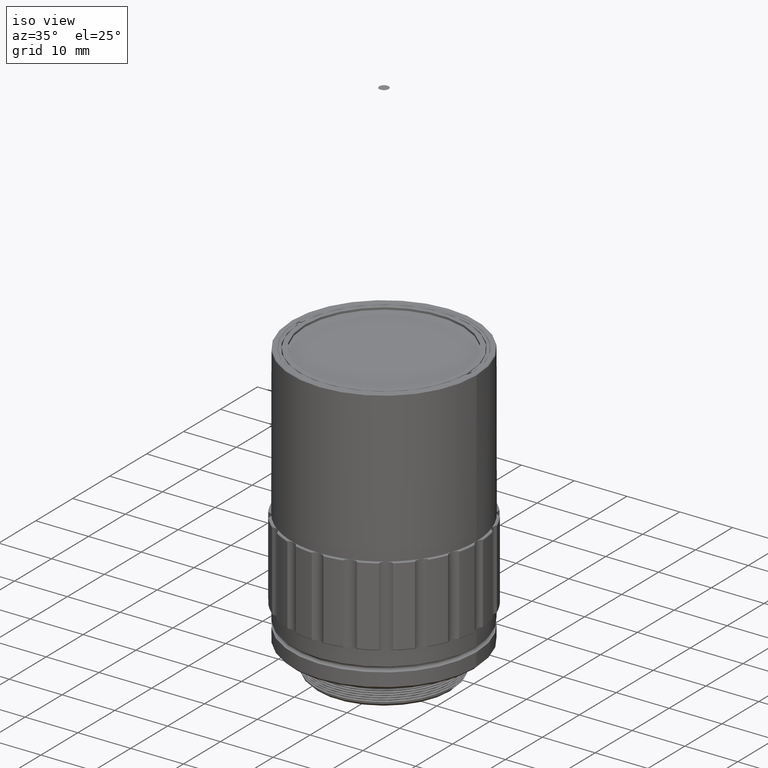
[diagram: clean part render]
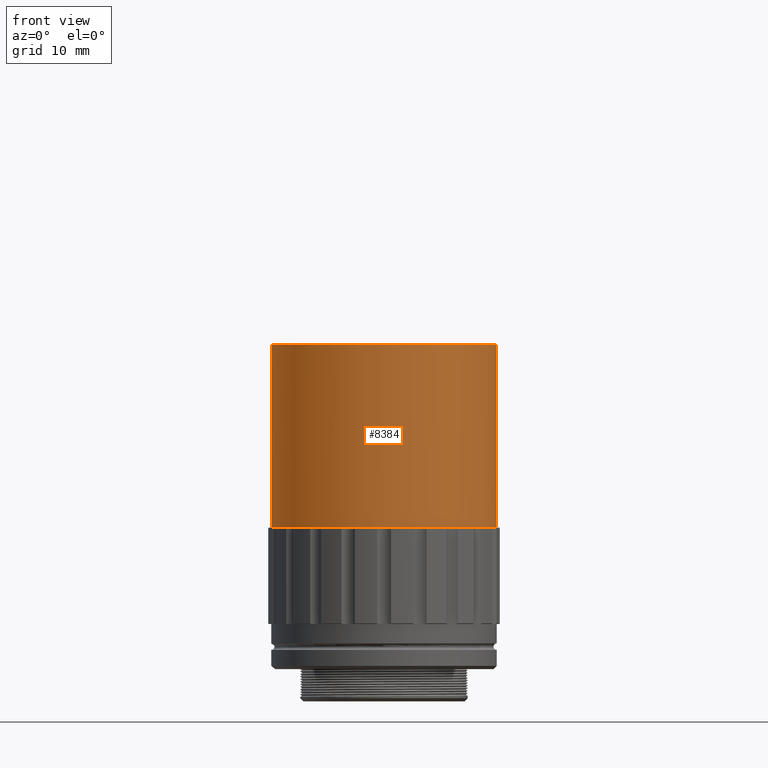
[diagram: tour spotlight — one face highlighted and labeled with its STEP entity id]
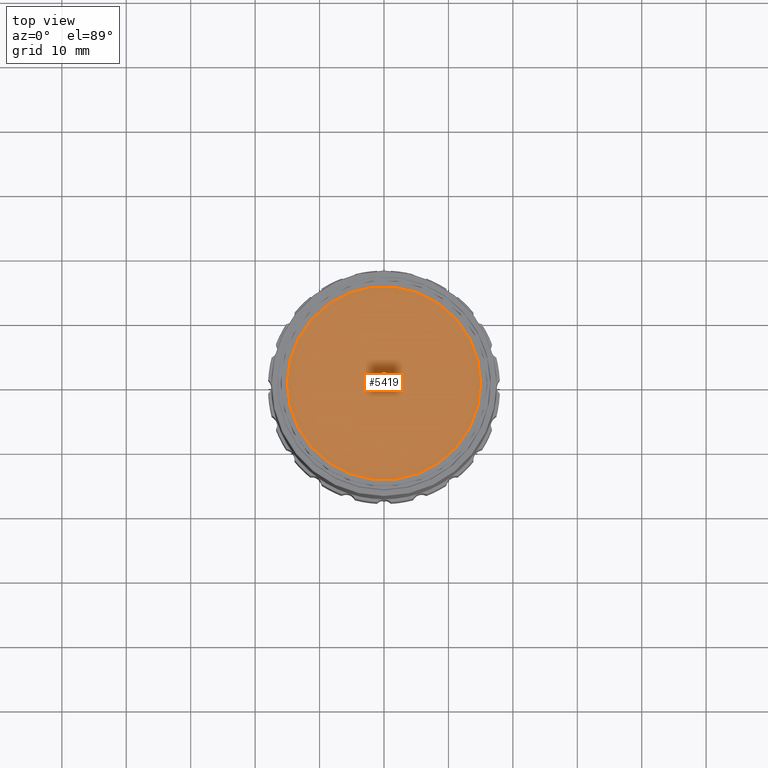
[diagram: tour spotlight — one face highlighted and labeled with its STEP entity id]
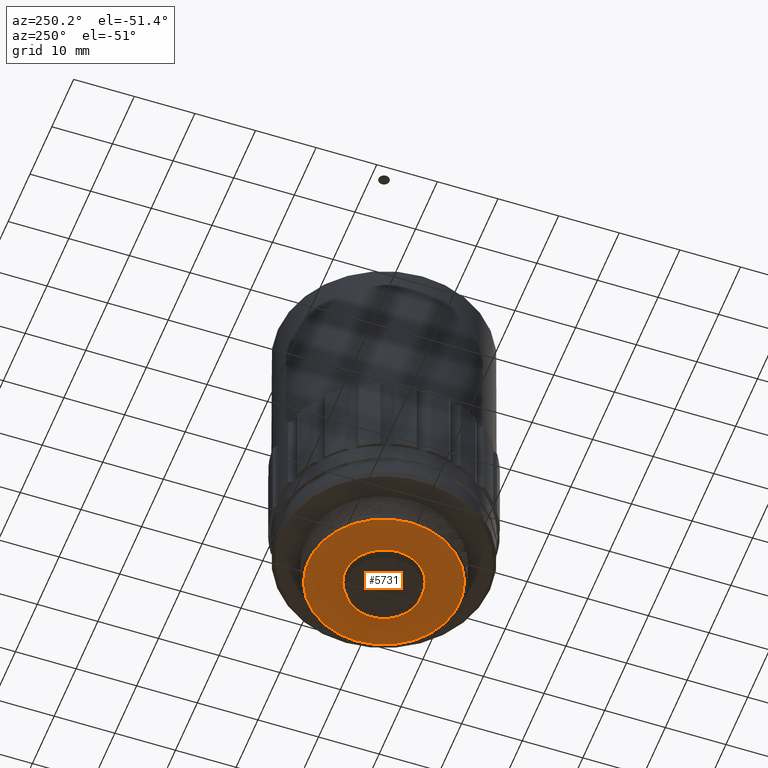
[diagram: tour spotlight — one face highlighted and labeled with its STEP entity id]
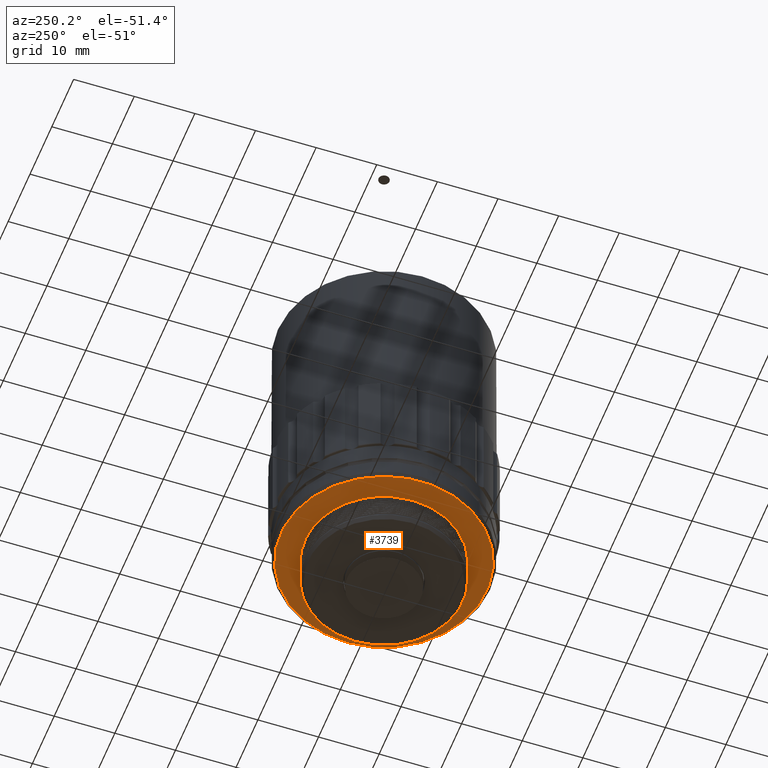
[diagram: tour spotlight — one face highlighted and labeled with its STEP entity id]
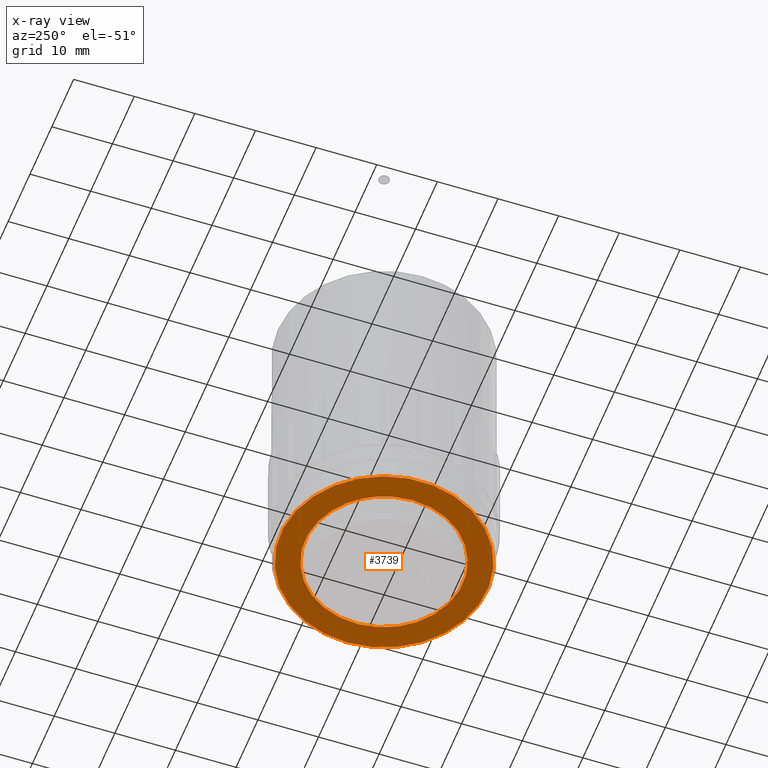
[diagram: x-ray of the same camera — body ghosted, this tour face saturated]
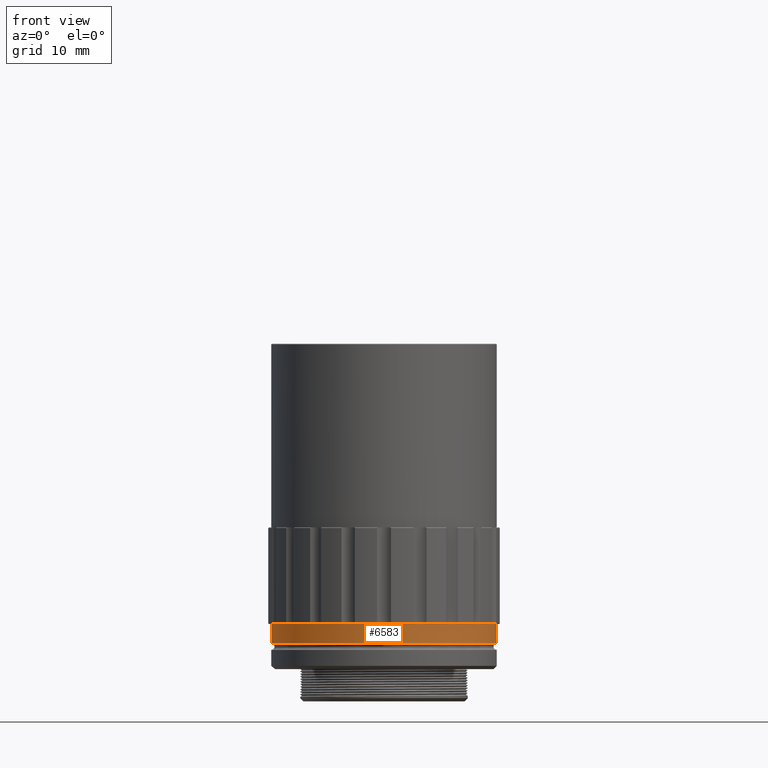
[diagram: tour spotlight — one face highlighted and labeled with its STEP entity id]
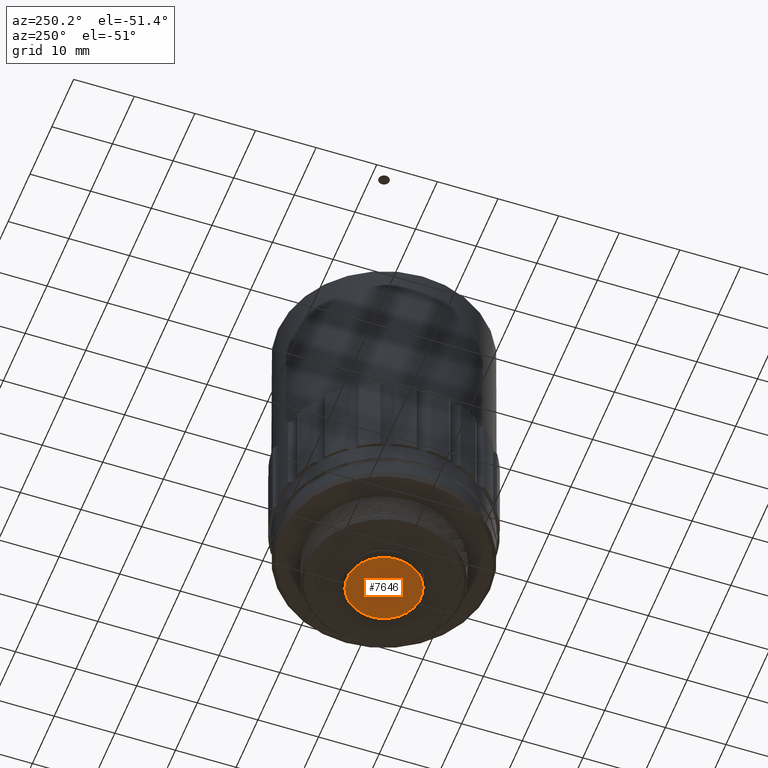
[diagram: tour spotlight — one face highlighted and labeled with its STEP entity id]
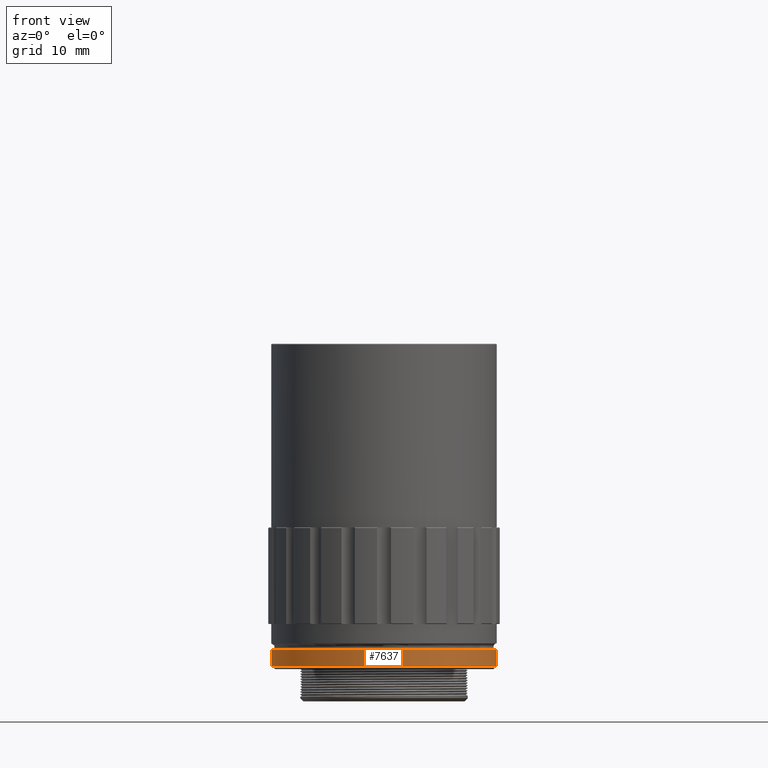
[diagram: tour spotlight — one face highlighted and labeled with its STEP entity id]
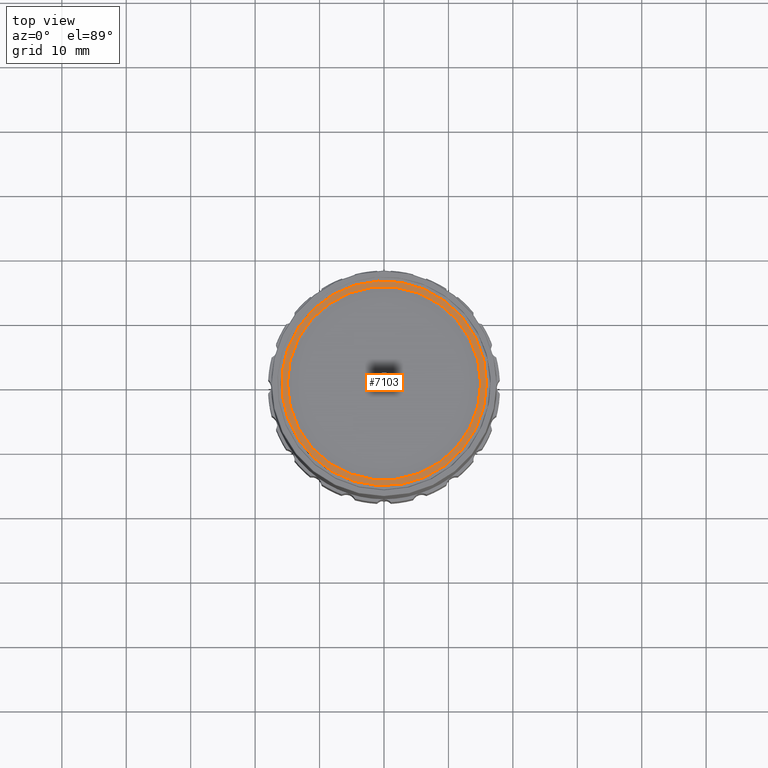
[diagram: tour spotlight — one face highlighted and labeled with its STEP entity id]
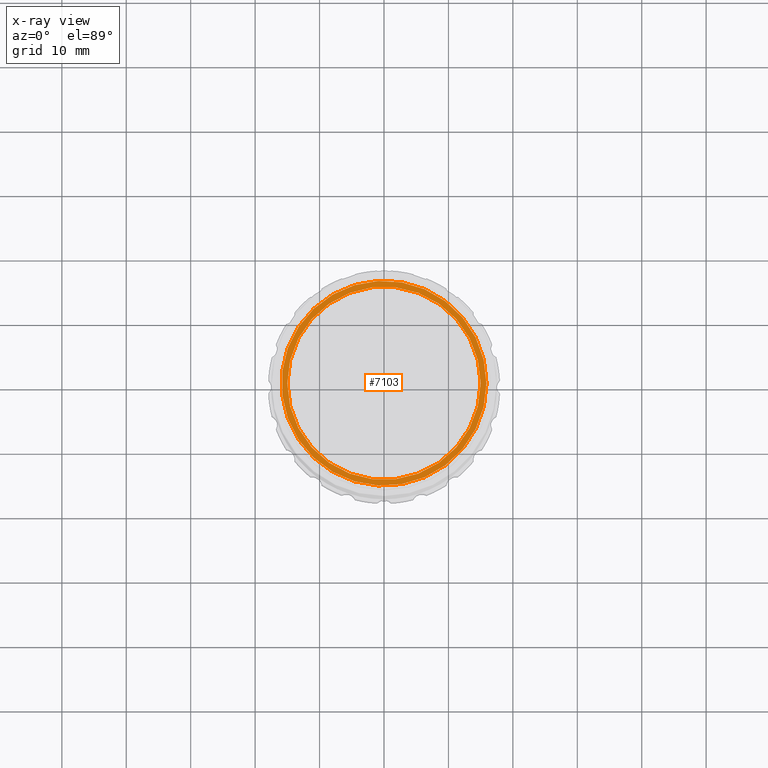
[diagram: x-ray of the same camera — body ghosted, this tour face saturated]
A machine part: a face-by-face anatomy tour. The part has 271 B-rep faces; the first image is the clean iso view, then the 8 largest visible faces are spotlighted one at a time (largest first), each with its STEP entity span.

Face 1 — front view, entity #8384. In plain terms, the highlighted cylindrical surface (bore or boss wall) has radius 17.5 mm, axis along (0, 0, 1).
Definition (entity closure, byte-faithful):
#39 = ORIENTED_EDGE ( 'NONE', *, *, #1118, .T. ) ;
#58 = AXIS2_PLACEMENT_3D ( 'NONE', #542, #6389, #7099 ) ;
#158 = CIRCLE ( 'NONE', #3777, 17.50000000000000000 ) ;
#175 = AXIS2_PLACEMENT_3D ( 'NONE', #1757, #3930, #1101 ) ;
#191 = CARTESIAN_POINT ( 'NONE',  ( -10.28624191511939223, 14.15779740155993771, 26.50000000000008882 ) ) ;
#201 = VERTEX_POINT ( 'NONE', #352 ) ;
#289 = CIRCLE ( 'NONE', #2087, 17.50000000000000000 ) ;
#299 = ORIENTED_EDGE ( 'NONE', *, *, #2020, .T. ) ;
#352 = CARTESIAN_POINT ( 'NONE',  ( 14.15779740155669764, 10.28624191512385266, 26.49999999999997158 ) ) ;
#372 = CARTESIAN_POINT ( 'NONE',  ( 0.000000000000000000, 0.000000000000000000, 26.50000000000000000 ) ) ;
#542 = CARTESIAN_POINT ( 'NONE',  ( 0.000000000000000000, 0.000000000000000000, 26.50000000000000000 ) ) ;
#582 = DIRECTION ( 'NONE',  ( 0.000000000000000000, 0.000000000000000000, 1.000000000000000000 ) ) ;
#650 = CARTESIAN_POINT ( 'NONE',  ( 17.50000000000000000, 0.000000000000000000, 54.89999999999999858 ) ) ;
#660 = CARTESIAN_POINT ( 'NONE',  ( 0.000000000000000000, 0.000000000000000000, 26.50000000000000000 ) ) ;
#689 = ORIENTED_EDGE ( 'NONE', *, *, #8478, .T. ) ;
#792 = CIRCLE ( 'NONE', #5660, 17.50000000000000000 ) ;
#1031 = EDGE_CURVE ( 'NONE', #1261, #1809, #289, .T. ) ;
#1077 = CARTESIAN_POINT ( 'NONE',  ( -17.49999999999999645, 4.754785213361712775E-15, 26.50000000000082778 ) ) ;
#1101 = DIRECTION ( 'NONE',  ( 1.000000000000000000, 0.000000000000000000, 0.000000000000000000 ) ) ;
#1112 = CIRCLE ( 'NONE', #7127, 17.50000000000000000 ) ;
#1118 = EDGE_CURVE ( 'NONE', #7263, #5479, #6272, .T. ) ;
#1203 = AXIS2_PLACEMENT_3D ( 'NONE', #660, #1269, #8010 ) ;
#1218 = CARTESIAN_POINT ( 'NONE',  ( 0.000000000000000000, 0.000000000000000000, 54.89999999999999858 ) ) ;
#1261 = VERTEX_POINT ( 'NONE', #5251 ) ;
#1269 = DIRECTION ( 'NONE',  ( 0.000000000000000000, 0.000000000000000000, 1.000000000000000000 ) ) ;
#1352 = DIRECTION ( 'NONE',  ( 1.000000000000000000, 0.000000000000000000, 0.000000000000000000 ) ) ;
#1380 = CARTESIAN_POINT ( 'NONE',  ( 0.000000000000000000, 0.000000000000000000, 26.50000000000000000 ) ) ;
#1402 = VERTEX_POINT ( 'NONE', #5463 ) ;
#1423 = DIRECTION ( 'NONE',  ( 1.000000000000000000, 0.000000000000000000, 0.000000000000000000 ) ) ;
#1493 = CARTESIAN_POINT ( 'NONE',  ( 17.50000000000000000, -2.143131898507868248E-15, 26.49999999999988631 ) ) ;
#1503 = EDGE_CURVE ( 'NONE', #5479, #3507, #3756, .T. ) ;
#1571 = ORIENTED_EDGE ( 'NONE', *, *, #4917, .T. ) ;
#1642 = DIRECTION ( 'NONE',  ( 0.000000000000000000, 0.000000000000000000, 1.000000000000000000 ) ) ;
#1757 = CARTESIAN_POINT ( 'NONE',  ( 0.000000000000000000, 0.000000000000000000, 26.50000000000000000 ) ) ;
#1809 = VERTEX_POINT ( 'NONE', #4126 ) ;
#1861 = DIRECTION ( 'NONE',  ( 1.000000000000000000, 0.000000000000000000, 0.000000000000000000 ) ) ;
#1924 = CARTESIAN_POINT ( 'NONE',  ( 0.000000000000000000, 0.000000000000000000, 26.50000000000000000 ) ) ;
#2020 = EDGE_CURVE ( 'NONE', #7874, #2261, #5341, .T. ) ;
#2026 = VERTEX_POINT ( 'NONE', #3812 ) ;
#2074 = AXIS2_PLACEMENT_3D ( 'NONE', #4441, #2349, #7834 ) ;
#2087 = AXIS2_PLACEMENT_3D ( 'NONE', #3859, #3159, #3726 ) ;
#2110 = CARTESIAN_POINT ( 'NONE',  ( 0.000000000000000000, 0.000000000000000000, 26.50000000000000000 ) ) ;
#2210 = AXIS2_PLACEMENT_3D ( 'NONE', #5185, #3050, #5834 ) ;
#2261 = VERTEX_POINT ( 'NONE', #191 ) ;
#2349 = DIRECTION ( 'NONE',  ( 0.000000000000000000, 0.000000000000000000, 1.000000000000000000 ) ) ;
#2365 = CIRCLE ( 'NONE', #3902, 17.50000000000000000 ) ;
#2371 = DIRECTION ( 'NONE',  ( 0.000000000000000000, 0.000000000000000000, 1.000000000000000000 ) ) ;
#2407 = FACE_OUTER_BOUND ( 'NONE', #3805, .T. ) ;
#2488 = EDGE_CURVE ( 'NONE', #2261, #6550, #5906, .T. ) ;
#2490 = DIRECTION ( 'NONE',  ( 0.000000000000000000, 0.000000000000000000, 1.000000000000000000 ) ) ;
#2506 = ORIENTED_EDGE ( 'NONE', *, *, #2984, .T. ) ;
#2543 = VERTEX_POINT ( 'NONE', #4373 ) ;
#2566 = EDGE_CURVE ( 'NONE', #5891, #7263, #2571, .T. ) ;
#2571 = CIRCLE ( 'NONE', #58, 17.50000000000000000 ) ;
#2604 = CIRCLE ( 'NONE', #7507, 17.50000000000000000 ) ;
#2617 = DIRECTION ( 'NONE',  ( 0.000000000000000000, 0.000000000000000000, 1.000000000000000000 ) ) ;
#2819 = AXIS2_PLACEMENT_3D ( 'NONE', #4986, #4329, #7675 ) ;
#2862 = CARTESIAN_POINT ( 'NONE',  ( 0.000000000000000000, 0.000000000000000000, 26.50000000000000000 ) ) ;
#2960 = VERTEX_POINT ( 'NONE', #7885 ) ;
#2984 = EDGE_CURVE ( 'NONE', #201, #3963, #7047, .T. ) ;
#2996 = DIRECTION ( 'NONE',  ( 0.000000000000000000, 0.000000000000000000, 1.000000000000000000 ) ) ;
#3050 = DIRECTION ( 'NONE',  ( 0.000000000000000000, 0.000000000000000000, 1.000000000000000000 ) ) ;
#3159 = DIRECTION ( 'NONE',  ( 0.000000000000000000, 0.000000000000000000, 1.000000000000000000 ) ) ;
#3187 = ORIENTED_EDGE ( 'NONE', *, *, #6896, .T. ) ;
#3189 = CIRCLE ( 'NONE', #8094, 17.50000000000000000 ) ;
#3335 = CARTESIAN_POINT ( 'NONE',  ( -5.407797401563949613, 16.64348903516538059, 26.49999999999894129 ) ) ;
#3343 = DIRECTION ( 'NONE',  ( 0.000000000000000000, 0.000000000000000000, 1.000000000000000000 ) ) ;
#3359 = CARTESIAN_POINT ( 'NONE',  ( 0.000000000000000000, 0.000000000000000000, 26.50000000000000000 ) ) ;
#3401 = CARTESIAN_POINT ( 'NONE',  ( 0.000000000000000000, 0.000000000000000000, 26.50000000000000000 ) ) ;
#3437 = CARTESIAN_POINT ( 'NONE',  ( 10.28624191511939223, 14.15779740155993771, 26.49999999999974065 ) ) ;
#3477 = EDGE_LOOP ( 'NONE', ( #3187, #6065, #689, #4070, #5738, #4422, #3619, #1571, #7455, #7196, #39, #8534, #5039, #2506, #6761, #4134, #6498, #299, #8667, #5965 ) ) ;
#3495 = CARTESIAN_POINT ( 'NONE',  ( 6.735557395310443009E-16, 17.50000000000000000, 26.50000000000076028 ) ) ;
#3503 = CIRCLE ( 'NONE', #4630, 17.50000000000000000 ) ;
#3507 = VERTEX_POINT ( 'NONE', #6534 ) ;
#3613 = CIRCLE ( 'NONE', #2074, 17.50000000000000000 ) ;
#3619 = ORIENTED_EDGE ( 'NONE', *, *, #6274, .T. ) ;
#3633 = CYLINDRICAL_SURFACE ( 'NONE', #2819, 17.50000000000000000 ) ;
#3673 = CARTESIAN_POINT ( 'NONE',  ( 5.407797401563949613, 16.64348903516538059, 26.50000000000057554 ) ) ;
#3678 = AXIS2_PLACEMENT_3D ( 'NONE', #6476, #2371, #3848 ) ;
#3721 = EDGE_CURVE ( 'NONE', #1809, #1402, #6234, .T. ) ;
#3726 = DIRECTION ( 'NONE',  ( 1.000000000000000000, 0.000000000000000000, 0.000000000000000000 ) ) ;
#3756 = CIRCLE ( 'NONE', #7826, 17.50000000000000000 ) ;
#3768 = DIRECTION ( 'NONE',  ( 1.000000000000000000, 0.000000000000000000, 0.000000000000000000 ) ) ;
#3777 = AXIS2_PLACEMENT_3D ( 'NONE', #1380, #5392, #1423 ) ;
#3805 = EDGE_LOOP ( 'NONE', ( #4839 ) ) ;
#3812 = CARTESIAN_POINT ( 'NONE',  ( -16.64348903516538059, -5.407797401563944284, 26.49999999999891287 ) ) ;
#3836 = DIRECTION ( 'NONE',  ( 1.000000000000000000, 0.000000000000000000, 0.000000000000000000 ) ) ;
#3848 = DIRECTION ( 'NONE',  ( 1.000000000000000000, 0.000000000000000000, 0.000000000000000000 ) ) ;
#3859 = CARTESIAN_POINT ( 'NONE',  ( 0.000000000000000000, 0.000000000000000000, 26.50000000000000000 ) ) ;
#3902 = AXIS2_PLACEMENT_3D ( 'NONE', #1218, #6370, #7129 ) ;
#3916 = DIRECTION ( 'NONE',  ( 1.000000000000000000, 0.000000000000000000, 0.000000000000000000 ) ) ;
#3919 = EDGE_CURVE ( 'NONE', #4587, #2026, #792, .T. ) ;
#3930 = DIRECTION ( 'NONE',  ( 0.000000000000000000, 0.000000000000000000, 1.000000000000000000 ) ) ;
#3963 = VERTEX_POINT ( 'NONE', #3437 ) ;
#3985 = EDGE_CURVE ( 'NONE', #5547, #7874, #2604, .T. ) ;
#4028 = DIRECTION ( 'NONE',  ( 1.000000000000000000, 0.000000000000000000, 0.000000000000000000 ) ) ;
#4070 = ORIENTED_EDGE ( 'NONE', *, *, #7482, .T. ) ;
#4126 = CARTESIAN_POINT ( 'NONE',  ( -5.407797401560632267, -16.64348903516654232, 26.49999999999969802 ) ) ;
#4134 = ORIENTED_EDGE ( 'NONE', *, *, #8644, .T. ) ;
#4329 = DIRECTION ( 'NONE',  ( 0.000000000000000000, 0.000000000000000000, 1.000000000000000000 ) ) ;
#4362 = CARTESIAN_POINT ( 'NONE',  ( 0.000000000000000000, 0.000000000000000000, 26.50000000000000000 ) ) ;
#4373 = CARTESIAN_POINT ( 'NONE',  ( -16.64348903516708944, 5.407797401558694261, 26.49999999999985079 ) ) ;
#4394 = AXIS2_PLACEMENT_3D ( 'NONE', #2110, #5424, #4028 ) ;
#4422 = ORIENTED_EDGE ( 'NONE', *, *, #3721, .T. ) ;
#4441 = CARTESIAN_POINT ( 'NONE',  ( 0.000000000000000000, 0.000000000000000000, 26.50000000000000000 ) ) ;
#4474 = DIRECTION ( 'NONE',  ( 0.000000000000000000, 0.000000000000000000, 1.000000000000000000 ) ) ;
#4504 = CARTESIAN_POINT ( 'NONE',  ( 14.15779740155993771, -10.28624191511939223, 26.50000000000000000 ) ) ;
#4587 = VERTEX_POINT ( 'NONE', #1077 ) ;
#4590 = DIRECTION ( 'NONE',  ( 1.000000000000000000, 0.000000000000000000, 0.000000000000000000 ) ) ;
#4591 = CIRCLE ( 'NONE', #2210, 17.50000000000000000 ) ;
#4630 = AXIS2_PLACEMENT_3D ( 'NONE', #5959, #3343, #3916 ) ;
#4839 = ORIENTED_EDGE ( 'NONE', *, *, #6335, .T. ) ;
#4917 = EDGE_CURVE ( 'NONE', #5067, #2960, #5225, .T. ) ;
#4919 = DIRECTION ( 'NONE',  ( 1.000000000000000000, 0.000000000000000000, 0.000000000000000000 ) ) ;
#4944 = FACE_OUTER_BOUND ( 'NONE', #3477, .T. ) ;
#4986 = CARTESIAN_POINT ( 'NONE',  ( 0.000000000000000000, 0.000000000000000000, 1.975000000000000089 ) ) ;
#5039 = ORIENTED_EDGE ( 'NONE', *, *, #7390, .T. ) ;
#5067 = VERTEX_POINT ( 'NONE', #6347 ) ;
#5082 = CARTESIAN_POINT ( 'NONE',  ( 0.000000000000000000, 0.000000000000000000, 26.50000000000000000 ) ) ;
#5151 = AXIS2_PLACEMENT_3D ( 'NONE', #372, #8435, #3768 ) ;
#5185 = CARTESIAN_POINT ( 'NONE',  ( 0.000000000000000000, 0.000000000000000000, 26.50000000000000000 ) ) ;
#5225 = CIRCLE ( 'NONE', #4394, 17.50000000000000000 ) ;
#5251 = CARTESIAN_POINT ( 'NONE',  ( -10.28624191512266606, -14.15779740155755917, 26.49999999999985789 ) ) ;
#5267 = VERTEX_POINT ( 'NONE', #650 ) ;
#5341 = CIRCLE ( 'NONE', #8165, 17.50000000000000000 ) ;
#5392 = DIRECTION ( 'NONE',  ( 0.000000000000000000, 0.000000000000000000, 1.000000000000000000 ) ) ;
#5400 = DIRECTION ( 'NONE',  ( 0.000000000000000000, 0.000000000000000000, 1.000000000000000000 ) ) ;
#5424 = DIRECTION ( 'NONE',  ( 0.000000000000000000, 0.000000000000000000, 1.000000000000000000 ) ) ;
#5463 = CARTESIAN_POINT ( 'NONE',  ( -2.485940447317794272E-15, -17.50000000000000000, 26.49999999999985079 ) ) ;
#5479 = VERTEX_POINT ( 'NONE', #1493 ) ;
#5547 = VERTEX_POINT ( 'NONE', #3495 ) ;
#5660 = AXIS2_PLACEMENT_3D ( 'NONE', #1924, #2617, #4590 ) ;
#5714 = DIRECTION ( 'NONE',  ( 1.000000000000000000, 0.000000000000000000, 0.000000000000000000 ) ) ;
#5738 = ORIENTED_EDGE ( 'NONE', *, *, #1031, .T. ) ;
#5834 = DIRECTION ( 'NONE',  ( 1.000000000000000000, 0.000000000000000000, 0.000000000000000000 ) ) ;
#5891 = VERTEX_POINT ( 'NONE', #4504 ) ;
#5906 = CIRCLE ( 'NONE', #3678, 17.50000000000000000 ) ;
#5914 = EDGE_CURVE ( 'NONE', #3963, #8387, #7635, .T. ) ;
#5959 = CARTESIAN_POINT ( 'NONE',  ( 0.000000000000000000, 0.000000000000000000, 26.50000000000000000 ) ) ;
#5965 = ORIENTED_EDGE ( 'NONE', *, *, #6663, .T. ) ;
#6009 = CARTESIAN_POINT ( 'NONE',  ( 0.000000000000000000, 0.000000000000000000, 26.50000000000000000 ) ) ;
#6024 = CIRCLE ( 'NONE', #7172, 17.50000000000000000 ) ;
#6062 = DIRECTION ( 'NONE',  ( 1.000000000000000000, 0.000000000000000000, 0.000000000000000000 ) ) ;
#6065 = ORIENTED_EDGE ( 'NONE', *, *, #3919, .T. ) ;
#6234 = CIRCLE ( 'NONE', #8213, 17.50000000000000000 ) ;
#6272 = CIRCLE ( 'NONE', #5151, 17.50000000000000000 ) ;
#6274 = EDGE_CURVE ( 'NONE', #1402, #5067, #3613, .T. ) ;
#6335 = EDGE_CURVE ( 'NONE', #5267, #5267, #2365, .T. ) ;
#6347 = CARTESIAN_POINT ( 'NONE',  ( 5.407797401558688044, -16.64348903516708944, 26.49999999999959499 ) ) ;
#6370 = DIRECTION ( 'NONE',  ( -0.000000000000000000, -0.000000000000000000, -1.000000000000000000 ) ) ;
#6389 = DIRECTION ( 'NONE',  ( 0.000000000000000000, 0.000000000000000000, 1.000000000000000000 ) ) ;
#6476 = CARTESIAN_POINT ( 'NONE',  ( 0.000000000000000000, 0.000000000000000000, 26.50000000000000000 ) ) ;
#6498 = ORIENTED_EDGE ( 'NONE', *, *, #3985, .T. ) ;
#6534 = CARTESIAN_POINT ( 'NONE',  ( 16.64348903516708944, 5.407797401558693373, 26.50000000000004263 ) ) ;
#6550 = VERTEX_POINT ( 'NONE', #8043 ) ;
#6663 = EDGE_CURVE ( 'NONE', #6550, #2543, #1112, .T. ) ;
#6761 = ORIENTED_EDGE ( 'NONE', *, *, #5914, .T. ) ;
#6896 = EDGE_CURVE ( 'NONE', #2543, #4587, #3189, .T. ) ;
#7047 = CIRCLE ( 'NONE', #8174, 17.50000000000000000 ) ;
#7099 = DIRECTION ( 'NONE',  ( 1.000000000000000000, 0.000000000000000000, 0.000000000000000000 ) ) ;
#7127 = AXIS2_PLACEMENT_3D ( 'NONE', #2862, #1642, #4919 ) ;
#7129 = DIRECTION ( 'NONE',  ( 1.000000000000000000, 0.000000000000000000, 0.000000000000000000 ) ) ;
#7135 = EDGE_CURVE ( 'NONE', #2960, #5891, #4591, .T. ) ;
#7164 = CIRCLE ( 'NONE', #175, 17.50000000000000000 ) ;
#7172 = AXIS2_PLACEMENT_3D ( 'NONE', #3359, #7315, #1352 ) ;
#7196 = ORIENTED_EDGE ( 'NONE', *, *, #2566, .T. ) ;
#7263 = VERTEX_POINT ( 'NONE', #8497 ) ;
#7315 = DIRECTION ( 'NONE',  ( 0.000000000000000000, 0.000000000000000000, 1.000000000000000000 ) ) ;
#7390 = EDGE_CURVE ( 'NONE', #3507, #201, #3503, .T. ) ;
#7455 = ORIENTED_EDGE ( 'NONE', *, *, #7135, .T. ) ;
#7482 = EDGE_CURVE ( 'NONE', #7729, #1261, #158, .T. ) ;
#7507 = AXIS2_PLACEMENT_3D ( 'NONE', #6009, #5400, #8093 ) ;
#7635 = CIRCLE ( 'NONE', #1203, 17.50000000000000000 ) ;
#7675 = DIRECTION ( 'NONE',  ( 1.000000000000000000, 0.000000000000000000, 0.000000000000000000 ) ) ;
#7698 = CARTESIAN_POINT ( 'NONE',  ( -14.15779740155994482, -10.28624191511938513, 26.50000000000060041 ) ) ;
#7729 = VERTEX_POINT ( 'NONE', #7698 ) ;
#7822 = CARTESIAN_POINT ( 'NONE',  ( 0.000000000000000000, 0.000000000000000000, 26.50000000000000000 ) ) ;
#7826 = AXIS2_PLACEMENT_3D ( 'NONE', #3401, #582, #6062 ) ;
#7834 = DIRECTION ( 'NONE',  ( 1.000000000000000000, 0.000000000000000000, 0.000000000000000000 ) ) ;
#7865 = DIRECTION ( 'NONE',  ( 1.000000000000000000, 0.000000000000000000, 0.000000000000000000 ) ) ;
#7874 = VERTEX_POINT ( 'NONE', #3335 ) ;
#7885 = CARTESIAN_POINT ( 'NONE',  ( 10.28624191512385266, -14.15779740155669764, 26.50000000000004263 ) ) ;
#8010 = DIRECTION ( 'NONE',  ( 1.000000000000000000, 0.000000000000000000, 0.000000000000000000 ) ) ;
#8043 = CARTESIAN_POINT ( 'NONE',  ( -14.15779740155756272, 10.28624191512266250, 26.50000000000012790 ) ) ;
#8093 = DIRECTION ( 'NONE',  ( 1.000000000000000000, 0.000000000000000000, 0.000000000000000000 ) ) ;
#8094 = AXIS2_PLACEMENT_3D ( 'NONE', #7822, #2996, #7865 ) ;
#8165 = AXIS2_PLACEMENT_3D ( 'NONE', #5082, #4474, #1861 ) ;
#8174 = AXIS2_PLACEMENT_3D ( 'NONE', #8372, #8457, #3836 ) ;
#8213 = AXIS2_PLACEMENT_3D ( 'NONE', #4362, #2490, #5714 ) ;
#8372 = CARTESIAN_POINT ( 'NONE',  ( 0.000000000000000000, 0.000000000000000000, 26.50000000000000000 ) ) ;
#8384 = ADVANCED_FACE ( 'NONE', ( #4944, #2407 ), #3633, .T. ) ;
#8387 = VERTEX_POINT ( 'NONE', #3673 ) ;
#8435 = DIRECTION ( 'NONE',  ( 0.000000000000000000, 0.000000000000000000, 1.000000000000000000 ) ) ;
#8457 = DIRECTION ( 'NONE',  ( 0.000000000000000000, 0.000000000000000000, 1.000000000000000000 ) ) ;
#8478 = EDGE_CURVE ( 'NONE', #2026, #7729, #7164, .T. ) ;
#8497 = CARTESIAN_POINT ( 'NONE',  ( 16.64348903516537703, -5.407797401563954942, 26.50000000000000000 ) ) ;
#8534 = ORIENTED_EDGE ( 'NONE', *, *, #1503, .T. ) ;
#8644 = EDGE_CURVE ( 'NONE', #8387, #5547, #6024, .T. ) ;
#8667 = ORIENTED_EDGE ( 'NONE', *, *, #2488, .T. ) ;

Face 2 — top view, entity #5419. In plain terms, the highlighted planar face has unit normal (0, 0, 1).
Definition (entity closure, byte-faithful):
#499 = CIRCLE ( 'NONE', #8054, 15.00000000000000000 ) ;
#508 = AXIS2_PLACEMENT_3D ( 'NONE', #5369, #5944, #2755 ) ;
#794 = FACE_OUTER_BOUND ( 'NONE', #6694, .T. ) ;
#1425 = CARTESIAN_POINT ( 'NONE',  ( -15.00000000000000000, 0.000000000000000000, 54.49784358293000253 ) ) ;
#1704 = ORIENTED_EDGE ( 'NONE', *, *, #5635, .F. ) ;
#2755 = DIRECTION ( 'NONE',  ( 1.000000000000000000, 0.000000000000000000, -0.000000000000000000 ) ) ;
#3957 = VERTEX_POINT ( 'NONE', #1425 ) ;
#4189 = DIRECTION ( 'NONE',  ( 0.000000000000000000, 0.000000000000000000, -1.000000000000000000 ) ) ;
#4282 = CARTESIAN_POINT ( 'NONE',  ( 0.000000000000000000, 0.000000000000000000, 54.49784358293000253 ) ) ;
#5369 = CARTESIAN_POINT ( 'NONE',  ( 0.000000000000000000, 0.000000000000000000, 54.49784358293000253 ) ) ;
#5419 = ADVANCED_FACE ( 'NONE', ( #794 ), #8109, .T. ) ;
#5635 = EDGE_CURVE ( 'NONE', #3957, #3957, #499, .T. ) ;
#5944 = DIRECTION ( 'NONE',  ( 0.000000000000000000, 0.000000000000000000, 1.000000000000000000 ) ) ;
#6694 = EDGE_LOOP ( 'NONE', ( #1704 ) ) ;
#7716 = DIRECTION ( 'NONE',  ( -1.000000000000000000, 0.000000000000000000, 0.000000000000000000 ) ) ;
#8054 = AXIS2_PLACEMENT_3D ( 'NONE', #4282, #4189, #7716 ) ;
#8109 = PLANE ( 'NONE',  #508 ) ;

Face 3 — auxiliary view, entity #5731. In plain terms, the highlighted planar face has unit normal (0, 0, -1).
Definition (entity closure, byte-faithful):
#1210 = EDGE_CURVE ( 'NONE', #2621, #2621, #4166, .T. ) ;
#1526 = CARTESIAN_POINT ( 'NONE',  ( -6.399999999985084287, 0.000000000000000000, -0.4999999999313331500 ) ) ;
#1612 = EDGE_CURVE ( 'NONE', #4357, #4357, #1673, .T. ) ;
#1673 = CIRCLE ( 'NONE', #6557, 6.399999999985084287 ) ;
#1925 = DIRECTION ( 'NONE',  ( -1.000000000000000000, 0.000000000000000000, -0.000000000000000000 ) ) ;
#2096 = DIRECTION ( 'NONE',  ( -1.000000000000000000, 0.000000000000000000, 0.000000000000000000 ) ) ;
#2621 = VERTEX_POINT ( 'NONE', #7975 ) ;
#3231 = DIRECTION ( 'NONE',  ( 0.000000000000000000, 0.000000000000000000, -1.000000000000000000 ) ) ;
#4094 = DIRECTION ( 'NONE',  ( -0.000000000000000000, -0.000000000000000000, 1.000000000000000000 ) ) ;
#4166 = CIRCLE ( 'NONE', #6686, 12.49999999999998757 ) ;
#4357 = VERTEX_POINT ( 'NONE', #1526 ) ;
#4729 = CARTESIAN_POINT ( 'NONE',  ( 0.000000000000000000, 0.000000000000000000, -0.4999999999999882871 ) ) ;
#5237 = FACE_BOUND ( 'NONE', #6235, .T. ) ;
#5731 = ADVANCED_FACE ( 'NONE', ( #8553, #5237 ), #8506, .T. ) ;
#5859 = ORIENTED_EDGE ( 'NONE', *, *, #1612, .T. ) ;
#6235 = EDGE_LOOP ( 'NONE', ( #5859 ) ) ;
#6316 = EDGE_LOOP ( 'NONE', ( #7796 ) ) ;
#6557 = AXIS2_PLACEMENT_3D ( 'NONE', #6952, #4094, #2096 ) ;
#6686 = AXIS2_PLACEMENT_3D ( 'NONE', #4729, #7287, #7324 ) ;
#6952 = CARTESIAN_POINT ( 'NONE',  ( 0.000000000000000000, 0.000000000000000000, -0.4999999999313331500 ) ) ;
#7287 = DIRECTION ( 'NONE',  ( 0.000000000000000000, 0.000000000000000000, 1.000000000000000000 ) ) ;
#7324 = DIRECTION ( 'NONE',  ( 1.000000000000000000, 0.000000000000000000, 0.000000000000000000 ) ) ;
#7352 = AXIS2_PLACEMENT_3D ( 'NONE', #7930, #3231, #1925 ) ;
#7796 = ORIENTED_EDGE ( 'NONE', *, *, #1210, .F. ) ;
#7930 = CARTESIAN_POINT ( 'NONE',  ( 0.000000000000000000, 0.000000000000000000, -0.5000000000000000000 ) ) ;
#7975 = CARTESIAN_POINT ( 'NONE',  ( 12.49999999999998757, 0.000000000000000000, -0.4999999999999882871 ) ) ;
#8506 = PLANE ( 'NONE',  #7352 ) ;
#8553 = FACE_OUTER_BOUND ( 'NONE', #6316, .T. ) ;

Face 4 — auxiliary view, entity #3739. An x-ray twin of the same camera follows (body ghosted, this face saturated) — the face is partly hidden behind the body. In plain terms, the highlighted planar face has unit normal (0, 0, 1).
Definition (entity closure, byte-faithful):
#47 = DIRECTION ( 'NONE',  ( -1.000000000000000000, 0.000000000000000000, 0.000000000000000000 ) ) ;
#627 = CARTESIAN_POINT ( 'NONE',  ( -1.239088197129897575E-17, 0.000000000000000000, 4.499999999998459899 ) ) ;
#688 = CARTESIAN_POINT ( 'NONE',  ( -6.867727178124054532, 11.03785864227551627, 4.499911844859509458 ) ) ;
#1139 = DIRECTION ( 'NONE',  ( 1.000000000000000000, 0.000000000000000000, -0.000000000000000000 ) ) ;
#1443 = CARTESIAN_POINT ( 'NONE',  ( 0.000000000000000000, 0.000000000000000000, 4.500000000000001776 ) ) ;
#1750 = ORIENTED_EDGE ( 'NONE', *, *, #2668, .F. ) ;
#1764 = DIRECTION ( 'NONE',  ( 1.000000000000000000, 0.000000000000000000, 0.000000000000000000 ) ) ;
#1843 = FACE_OUTER_BOUND ( 'NONE', #8407, .T. ) ;
#1956 = DIRECTION ( 'NONE',  ( -1.000000000000000000, 0.000000000000000000, 0.000000000000000000 ) ) ;
#2396 = CARTESIAN_POINT ( 'NONE',  ( 17.00000000000154188, 0.000000000000000000, 4.499999999998459899 ) ) ;
#2444 = CARTESIAN_POINT ( 'NONE',  ( 0.000000000000000000, 0.000000000000000000, 4.500000000000001776 ) ) ;
#2583 = AXIS2_PLACEMENT_3D ( 'NONE', #627, #5246, #1764 ) ;
#2668 = EDGE_CURVE ( 'NONE', #3710, #7357, #7329, .T. ) ;
#2686 = CARTESIAN_POINT ( 'NONE',  ( 0.000000000000000000, 0.000000000000000000, 4.500000000000001776 ) ) ;
#2783 = AXIS2_PLACEMENT_3D ( 'NONE', #2686, #4699, #1956 ) ;
#2796 = ORIENTED_EDGE ( 'NONE', *, *, #5254, .F. ) ;
#3112 = ORIENTED_EDGE ( 'NONE', *, *, #6453, .F. ) ;
#3710 = VERTEX_POINT ( 'NONE', #3796 ) ;
#3739 = ADVANCED_FACE ( 'NONE', ( #1843, #4503 ), #3752, .F. ) ;
#3752 = PLANE ( 'NONE',  #5247 ) ;
#3796 = CARTESIAN_POINT ( 'NONE',  ( -12.63279466231839443, 3.067979631565371790, 4.500000000000001776 ) ) ;
#4096 = DIRECTION ( 'NONE',  ( 0.000000000000000000, 0.000000000000000000, -1.000000000000000000 ) ) ;
#4503 = FACE_BOUND ( 'NONE', #8412, .T. ) ;
#4543 = VERTEX_POINT ( 'NONE', #2396 ) ;
#4602 = CIRCLE ( 'NONE', #2783, 13.00000000000000355 ) ;
#4699 = DIRECTION ( 'NONE',  ( 0.000000000000000000, 0.000000000000000000, -1.000000000000000000 ) ) ;
#5246 = DIRECTION ( 'NONE',  ( 2.478176394252166619E-17, -0.000000000000000000, 1.000000000000000000 ) ) ;
#5247 = AXIS2_PLACEMENT_3D ( 'NONE', #2444, #8552, #1139 ) ;
#5254 = EDGE_CURVE ( 'NONE', #4543, #4543, #6348, .T. ) ;
#6348 = CIRCLE ( 'NONE', #2583, 17.00000000000154188 ) ;
#6453 = EDGE_CURVE ( 'NONE', #7357, #3710, #4602, .T. ) ;
#7329 = CIRCLE ( 'NONE', #8030, 13.00000000000000355 ) ;
#7357 = VERTEX_POINT ( 'NONE', #688 ) ;
#8030 = AXIS2_PLACEMENT_3D ( 'NONE', #1443, #4096, #47 ) ;
#8407 = EDGE_LOOP ( 'NONE', ( #2796 ) ) ;
#8412 = EDGE_LOOP ( 'NONE', ( #1750, #3112 ) ) ;
#8552 = DIRECTION ( 'NONE',  ( 0.000000000000000000, 0.000000000000000000, 1.000000000000000000 ) ) ;

Face 5 — front view, entity #6583. In plain terms, the highlighted cylindrical surface (bore or boss wall) has radius 17.5 mm, axis along (0, 0, 1).
Definition (entity closure, byte-faithful):
#8 = ORIENTED_EDGE ( 'NONE', *, *, #1653, .F. ) ;
#16 = DIRECTION ( 'NONE',  ( 0.000000000000000000, 0.000000000000000000, 1.000000000000000000 ) ) ;
#51 = VERTEX_POINT ( 'NONE', #3245 ) ;
#94 = CIRCLE ( 'NONE', #4980, 17.50000000000000000 ) ;
#119 = CIRCLE ( 'NONE', #3885, 17.50000000000000000 ) ;
#305 = ORIENTED_EDGE ( 'NONE', *, *, #8208, .F. ) ;
#388 = EDGE_CURVE ( 'NONE', #1439, #1439, #119, .T. ) ;
#457 = CARTESIAN_POINT ( 'NONE',  ( -14.15779740155993771, 10.28624191511939401, 11.49999999999982592 ) ) ;
#613 = VERTEX_POINT ( 'NONE', #8134 ) ;
#646 = DIRECTION ( 'NONE',  ( 1.000000000000000000, 0.000000000000000000, 0.000000000000000000 ) ) ;
#736 = DIRECTION ( 'NONE',  ( 0.000000000000000000, 0.000000000000000000, 1.000000000000000000 ) ) ;
#777 = VERTEX_POINT ( 'NONE', #1901 ) ;
#785 = VERTEX_POINT ( 'NONE', #457 ) ;
#791 = VERTEX_POINT ( 'NONE', #5819 ) ;
#811 = EDGE_CURVE ( 'NONE', #1899, #613, #5154, .T. ) ;
#839 = AXIS2_PLACEMENT_3D ( 'NONE', #7556, #2118, #4830 ) ;
#840 = DIRECTION ( 'NONE',  ( 0.000000000000000000, 0.000000000000000000, 1.000000000000000000 ) ) ;
#855 = VERTEX_POINT ( 'NONE', #5498 ) ;
#870 = CARTESIAN_POINT ( 'NONE',  ( 0.000000000000000000, 0.000000000000000000, 11.50000000000000000 ) ) ;
#911 = VERTEX_POINT ( 'NONE', #8582 ) ;
#936 = DIRECTION ( 'NONE',  ( 0.000000000000000000, 0.000000000000000000, 1.000000000000000000 ) ) ;
#980 = EDGE_CURVE ( 'NONE', #777, #5742, #7833, .T. ) ;
#984 = DIRECTION ( 'NONE',  ( 1.000000000000000000, 0.000000000000000000, 0.000000000000000000 ) ) ;
#1014 = EDGE_CURVE ( 'NONE', #3031, #2908, #5429, .T. ) ;
#1088 = CARTESIAN_POINT ( 'NONE',  ( 0.000000000000000000, 0.000000000000000000, 11.50000000000000000 ) ) ;
#1176 = DIRECTION ( 'NONE',  ( 0.000000000000000000, 0.000000000000000000, 1.000000000000000000 ) ) ;
#1298 = FACE_OUTER_BOUND ( 'NONE', #7538, .T. ) ;
#1413 = CARTESIAN_POINT ( 'NONE',  ( 10.28624191512102648, 14.15779740155874933, 11.49999999999926459 ) ) ;
#1439 = VERTEX_POINT ( 'NONE', #2094 ) ;
#1458 = CARTESIAN_POINT ( 'NONE',  ( -17.50000000000000000, 1.071565949253934124E-15, 11.49999999999975309 ) ) ;
#1558 = AXIS2_PLACEMENT_3D ( 'NONE', #2898, #6971, #984 ) ;
#1602 = ORIENTED_EDGE ( 'NONE', *, *, #1014, .F. ) ;
#1623 = DIRECTION ( 'NONE',  ( 1.000000000000000000, 0.000000000000000000, 0.000000000000000000 ) ) ;
#1653 = EDGE_CURVE ( 'NONE', #855, #785, #7045, .T. ) ;
#1685 = ORIENTED_EDGE ( 'NONE', *, *, #811, .F. ) ;
#1753 = CARTESIAN_POINT ( 'NONE',  ( -14.15779740155670474, -10.28624191512384556, 11.49999999999986500 ) ) ;
#1800 = AXIS2_PLACEMENT_3D ( 'NONE', #5214, #8576, #5257 ) ;
#1828 = DIRECTION ( 'NONE',  ( 0.000000000000000000, 0.000000000000000000, 1.000000000000000000 ) ) ;
#1869 = DIRECTION ( 'NONE',  ( 0.000000000000000000, 0.000000000000000000, 1.000000000000000000 ) ) ;
#1883 = CARTESIAN_POINT ( 'NONE',  ( 0.000000000000000000, 0.000000000000000000, 11.50000000000000000 ) ) ;
#1886 = EDGE_CURVE ( 'NONE', #791, #911, #8033, .T. ) ;
#1899 = VERTEX_POINT ( 'NONE', #7946 ) ;
#1901 = CARTESIAN_POINT ( 'NONE',  ( -16.64348903516708944, -5.407797401558684491, 11.49999999999998401 ) ) ;
#1902 = DIRECTION ( 'NONE',  ( 1.000000000000000000, 0.000000000000000000, 0.000000000000000000 ) ) ;
#1988 = CYLINDRICAL_SURFACE ( 'NONE', #8677, 17.50000000000000000 ) ;
#2035 = DIRECTION ( 'NONE',  ( 1.000000000000000000, 0.000000000000000000, 0.000000000000000000 ) ) ;
#2045 = CIRCLE ( 'NONE', #5381, 17.50000000000000000 ) ;
#2094 = CARTESIAN_POINT ( 'NONE',  ( 17.50000000000000000, 0.000000000000000000, 8.500000000000000000 ) ) ;
#2118 = DIRECTION ( 'NONE',  ( 0.000000000000000000, 0.000000000000000000, 1.000000000000000000 ) ) ;
#2168 = VERTEX_POINT ( 'NONE', #2676 ) ;
#2189 = CARTESIAN_POINT ( 'NONE',  ( 0.000000000000000000, 0.000000000000000000, 11.50000000000000000 ) ) ;
#2223 = AXIS2_PLACEMENT_3D ( 'NONE', #1088, #3743, #3173 ) ;
#2306 = DIRECTION ( 'NONE',  ( 0.000000000000000000, 0.000000000000000000, 1.000000000000000000 ) ) ;
#2366 = ORIENTED_EDGE ( 'NONE', *, *, #7981, .F. ) ;
#2368 = AXIS2_PLACEMENT_3D ( 'NONE', #8657, #16, #2634 ) ;
#2474 = ORIENTED_EDGE ( 'NONE', *, *, #8404, .F. ) ;
#2531 = CARTESIAN_POINT ( 'NONE',  ( 17.50000000000000000, 0.000000000000000000, 11.50000000000015099 ) ) ;
#2570 = CARTESIAN_POINT ( 'NONE',  ( 0.000000000000000000, 0.000000000000000000, 8.500000000000000000 ) ) ;
#2574 = ORIENTED_EDGE ( 'NONE', *, *, #3854, .F. ) ;
#2587 = VERTEX_POINT ( 'NONE', #6431 ) ;
#2608 = FACE_OUTER_BOUND ( 'NONE', #3135, .T. ) ;
#2626 = ORIENTED_EDGE ( 'NONE', *, *, #5541, .F. ) ;
#2634 = DIRECTION ( 'NONE',  ( 1.000000000000000000, 0.000000000000000000, 0.000000000000000000 ) ) ;
#2670 = ORIENTED_EDGE ( 'NONE', *, *, #6071, .F. ) ;
#2676 = CARTESIAN_POINT ( 'NONE',  ( -5.407797401563954054, -16.64348903516537703, 11.50000000000017053 ) ) ;
#2695 = DIRECTION ( 'NONE',  ( 1.000000000000000000, 0.000000000000000000, 0.000000000000000000 ) ) ;
#2706 = AXIS2_PLACEMENT_3D ( 'NONE', #7906, #5211, #1902 ) ;
#2707 = CARTESIAN_POINT ( 'NONE',  ( -16.64348903516538059, 5.407797401563949613, 11.50000000000045297 ) ) ;
#2830 = CARTESIAN_POINT ( 'NONE',  ( 0.000000000000000000, 0.000000000000000000, 11.50000000000000000 ) ) ;
#2898 = CARTESIAN_POINT ( 'NONE',  ( 0.000000000000000000, 0.000000000000000000, 11.50000000000000000 ) ) ;
#2908 = VERTEX_POINT ( 'NONE', #6864 ) ;
#3031 = VERTEX_POINT ( 'NONE', #2531 ) ;
#3046 = CARTESIAN_POINT ( 'NONE',  ( 0.000000000000000000, 0.000000000000000000, 11.50000000000000000 ) ) ;
#3059 = ORIENTED_EDGE ( 'NONE', *, *, #6366, .F. ) ;
#3103 = CIRCLE ( 'NONE', #6876, 17.50000000000000000 ) ;
#3135 = EDGE_LOOP ( 'NONE', ( #4501 ) ) ;
#3173 = DIRECTION ( 'NONE',  ( 1.000000000000000000, 0.000000000000000000, 0.000000000000000000 ) ) ;
#3207 = AXIS2_PLACEMENT_3D ( 'NONE', #6501, #1828, #7169 ) ;
#3241 = CIRCLE ( 'NONE', #6724, 17.50000000000000000 ) ;
#3245 = CARTESIAN_POINT ( 'NONE',  ( 16.64348903516635403, -5.407797401560953787, 11.50000000000042100 ) ) ;
#3263 = AXIS2_PLACEMENT_3D ( 'NONE', #6109, #5496, #4805 ) ;
#3337 = AXIS2_PLACEMENT_3D ( 'NONE', #7872, #1869, #8523 ) ;
#3421 = VERTEX_POINT ( 'NONE', #2707 ) ;
#3425 = VERTEX_POINT ( 'NONE', #4521 ) ;
#3563 = EDGE_CURVE ( 'NONE', #3425, #2168, #6365, .T. ) ;
#3579 = AXIS2_PLACEMENT_3D ( 'NONE', #4453, #8459, #6379 ) ;
#3692 = DIRECTION ( 'NONE',  ( 1.000000000000000000, 0.000000000000000000, 0.000000000000000000 ) ) ;
#3724 = EDGE_CURVE ( 'NONE', #5742, #3425, #6789, .T. ) ;
#3743 = DIRECTION ( 'NONE',  ( 0.000000000000000000, 0.000000000000000000, 1.000000000000000000 ) ) ;
#3749 = AXIS2_PLACEMENT_3D ( 'NONE', #2830, #2306, #7658 ) ;
#3831 = VERTEX_POINT ( 'NONE', #6424 ) ;
#3854 = EDGE_CURVE ( 'NONE', #785, #3421, #2045, .T. ) ;
#3885 = AXIS2_PLACEMENT_3D ( 'NONE', #2570, #1176, #5231 ) ;
#3954 = DIRECTION ( 'NONE',  ( 0.000000000000000000, 0.000000000000000000, 1.000000000000000000 ) ) ;
#4093 = EDGE_CURVE ( 'NONE', #613, #7932, #94, .T. ) ;
#4237 = CARTESIAN_POINT ( 'NONE',  ( 0.000000000000000000, 0.000000000000000000, 11.50000000000000000 ) ) ;
#4271 = EDGE_CURVE ( 'NONE', #7932, #855, #6640, .T. ) ;
#4430 = DIRECTION ( 'NONE',  ( 0.000000000000000000, 0.000000000000000000, 1.000000000000000000 ) ) ;
#4453 = CARTESIAN_POINT ( 'NONE',  ( 0.000000000000000000, 0.000000000000000000, 11.50000000000000000 ) ) ;
#4471 = ORIENTED_EDGE ( 'NONE', *, *, #3563, .F. ) ;
#4501 = ORIENTED_EDGE ( 'NONE', *, *, #388, .T. ) ;
#4521 = CARTESIAN_POINT ( 'NONE',  ( -10.28624191512103714, -14.15779740155874400, 11.49999999999993960 ) ) ;
#4611 = CIRCLE ( 'NONE', #839, 17.50000000000000000 ) ;
#4657 = ORIENTED_EDGE ( 'NONE', *, *, #4271, .F. ) ;
#4685 = CIRCLE ( 'NONE', #7206, 17.50000000000000000 ) ;
#4805 = DIRECTION ( 'NONE',  ( 1.000000000000000000, 0.000000000000000000, 0.000000000000000000 ) ) ;
#4827 = ORIENTED_EDGE ( 'NONE', *, *, #980, .F. ) ;
#4830 = DIRECTION ( 'NONE',  ( 1.000000000000000000, 0.000000000000000000, 0.000000000000000000 ) ) ;
#4870 = VERTEX_POINT ( 'NONE', #1458 ) ;
#4959 = AXIS2_PLACEMENT_3D ( 'NONE', #3046, #5055, #8408 ) ;
#4980 = AXIS2_PLACEMENT_3D ( 'NONE', #870, #5532, #7522 ) ;
#4981 = DIRECTION ( 'NONE',  ( 1.000000000000000000, 0.000000000000000000, 0.000000000000000000 ) ) ;
#5012 = VERTEX_POINT ( 'NONE', #1413 ) ;
#5026 = ORIENTED_EDGE ( 'NONE', *, *, #3724, .F. ) ;
#5055 = DIRECTION ( 'NONE',  ( 0.000000000000000000, 0.000000000000000000, 1.000000000000000000 ) ) ;
#5120 = CARTESIAN_POINT ( 'NONE',  ( 0.000000000000000000, 0.000000000000000000, 11.50000000000000000 ) ) ;
#5132 = ORIENTED_EDGE ( 'NONE', *, *, #4093, .F. ) ;
#5154 = CIRCLE ( 'NONE', #2368, 17.50000000000000000 ) ;
#5211 = DIRECTION ( 'NONE',  ( 0.000000000000000000, 0.000000000000000000, 1.000000000000000000 ) ) ;
#5214 = CARTESIAN_POINT ( 'NONE',  ( 0.000000000000000000, 0.000000000000000000, 11.50000000000000000 ) ) ;
#5231 = DIRECTION ( 'NONE',  ( 1.000000000000000000, 0.000000000000000000, 0.000000000000000000 ) ) ;
#5257 = DIRECTION ( 'NONE',  ( 1.000000000000000000, 0.000000000000000000, 0.000000000000000000 ) ) ;
#5263 = CARTESIAN_POINT ( 'NONE',  ( 0.000000000000000000, 0.000000000000000000, 1.975000000000000089 ) ) ;
#5304 = AXIS2_PLACEMENT_3D ( 'NONE', #5999, #7429, #2035 ) ;
#5381 = AXIS2_PLACEMENT_3D ( 'NONE', #1883, #736, #2695 ) ;
#5387 = ORIENTED_EDGE ( 'NONE', *, *, #6734, .F. ) ;
#5404 = ORIENTED_EDGE ( 'NONE', *, *, #6957, .F. ) ;
#5415 = CIRCLE ( 'NONE', #1800, 17.50000000000000000 ) ;
#5429 = CIRCLE ( 'NONE', #3337, 17.50000000000000000 ) ;
#5496 = DIRECTION ( 'NONE',  ( 0.000000000000000000, 0.000000000000000000, 1.000000000000000000 ) ) ;
#5498 = CARTESIAN_POINT ( 'NONE',  ( -10.28624191512385266, 14.15779740155669764, 11.49999999999975309 ) ) ;
#5502 = DIRECTION ( 'NONE',  ( 0.000000000000000000, 0.000000000000000000, 1.000000000000000000 ) ) ;
#5532 = DIRECTION ( 'NONE',  ( 0.000000000000000000, 0.000000000000000000, 1.000000000000000000 ) ) ;
#5541 = EDGE_CURVE ( 'NONE', #8306, #3831, #4685, .T. ) ;
#5590 = DIRECTION ( 'NONE',  ( 1.000000000000000000, 0.000000000000000000, 0.000000000000000000 ) ) ;
#5636 = DIRECTION ( 'NONE',  ( 0.000000000000000000, 0.000000000000000000, 1.000000000000000000 ) ) ;
#5695 = CIRCLE ( 'NONE', #3749, 17.50000000000000000 ) ;
#5742 = VERTEX_POINT ( 'NONE', #1753 ) ;
#5819 = CARTESIAN_POINT ( 'NONE',  ( 10.28624191512102293, -14.15779740155875466, 11.49999999999948486 ) ) ;
#5999 = CARTESIAN_POINT ( 'NONE',  ( 0.000000000000000000, 0.000000000000000000, 11.50000000000000000 ) ) ;
#6071 = EDGE_CURVE ( 'NONE', #2908, #2587, #5695, .T. ) ;
#6109 = CARTESIAN_POINT ( 'NONE',  ( 0.000000000000000000, 0.000000000000000000, 11.50000000000000000 ) ) ;
#6260 = AXIS2_PLACEMENT_3D ( 'NONE', #7163, #4430, #3692 ) ;
#6276 = ORIENTED_EDGE ( 'NONE', *, *, #1886, .F. ) ;
#6365 = CIRCLE ( 'NONE', #8632, 17.50000000000000000 ) ;
#6366 = EDGE_CURVE ( 'NONE', #51, #3031, #8391, .T. ) ;
#6379 = DIRECTION ( 'NONE',  ( 1.000000000000000000, 0.000000000000000000, 0.000000000000000000 ) ) ;
#6398 = CIRCLE ( 'NONE', #6260, 17.50000000000000000 ) ;
#6424 = CARTESIAN_POINT ( 'NONE',  ( 5.407797401560950235, -16.64348903516635403, 11.50000000000036771 ) ) ;
#6431 = CARTESIAN_POINT ( 'NONE',  ( 14.15779740155875110, 10.28624191512102648, 11.50000000000000000 ) ) ;
#6501 = CARTESIAN_POINT ( 'NONE',  ( 0.000000000000000000, 0.000000000000000000, 11.50000000000000000 ) ) ;
#6583 = ADVANCED_FACE ( 'NONE', ( #2608, #1298 ), #1988, .T. ) ;
#6640 = CIRCLE ( 'NONE', #4959, 17.50000000000000000 ) ;
#6724 = AXIS2_PLACEMENT_3D ( 'NONE', #5120, #5636, #7814 ) ;
#6734 = EDGE_CURVE ( 'NONE', #4870, #777, #4611, .T. ) ;
#6789 = CIRCLE ( 'NONE', #3579, 17.50000000000000000 ) ;
#6864 = CARTESIAN_POINT ( 'NONE',  ( 16.64348903516654232, 5.407797401560634043, 11.50000000000000000 ) ) ;
#6867 = CARTESIAN_POINT ( 'NONE',  ( 0.000000000000000000, 0.000000000000000000, 11.50000000000000000 ) ) ;
#6876 = AXIS2_PLACEMENT_3D ( 'NONE', #4237, #936, #5590 ) ;
#6957 = EDGE_CURVE ( 'NONE', #911, #51, #6398, .T. ) ;
#6971 = DIRECTION ( 'NONE',  ( 0.000000000000000000, 0.000000000000000000, 1.000000000000000000 ) ) ;
#7013 = EDGE_CURVE ( 'NONE', #3831, #791, #5415, .T. ) ;
#7045 = CIRCLE ( 'NONE', #3263, 17.50000000000000000 ) ;
#7059 = ORIENTED_EDGE ( 'NONE', *, *, #7013, .F. ) ;
#7163 = CARTESIAN_POINT ( 'NONE',  ( 0.000000000000000000, 0.000000000000000000, 11.50000000000000000 ) ) ;
#7169 = DIRECTION ( 'NONE',  ( 1.000000000000000000, 0.000000000000000000, 0.000000000000000000 ) ) ;
#7206 = AXIS2_PLACEMENT_3D ( 'NONE', #6867, #840, #1623 ) ;
#7376 = CARTESIAN_POINT ( 'NONE',  ( -5.407797401558693373, 16.64348903516708944, 11.50000000000065192 ) ) ;
#7426 = ORIENTED_EDGE ( 'NONE', *, *, #7452, .F. ) ;
#7428 = CIRCLE ( 'NONE', #5304, 17.50000000000000000 ) ;
#7429 = DIRECTION ( 'NONE',  ( 0.000000000000000000, 0.000000000000000000, 1.000000000000000000 ) ) ;
#7452 = EDGE_CURVE ( 'NONE', #2168, #8306, #7428, .T. ) ;
#7522 = DIRECTION ( 'NONE',  ( 1.000000000000000000, 0.000000000000000000, 0.000000000000000000 ) ) ;
#7538 = EDGE_LOOP ( 'NONE', ( #4827, #5387, #2474, #2574, #8, #4657, #5132, #1685, #305, #2366, #2670, #1602, #3059, #5404, #6276, #7059, #2626, #7426, #4471, #5026 ) ) ;
#7556 = CARTESIAN_POINT ( 'NONE',  ( 0.000000000000000000, 0.000000000000000000, 11.50000000000000000 ) ) ;
#7630 = CARTESIAN_POINT ( 'NONE',  ( -1.607348923880901186E-15, -17.50000000000000000, 11.50000000000020428 ) ) ;
#7658 = DIRECTION ( 'NONE',  ( 1.000000000000000000, 0.000000000000000000, 0.000000000000000000 ) ) ;
#7814 = DIRECTION ( 'NONE',  ( 1.000000000000000000, 0.000000000000000000, 0.000000000000000000 ) ) ;
#7833 = CIRCLE ( 'NONE', #3207, 17.50000000000000000 ) ;
#7872 = CARTESIAN_POINT ( 'NONE',  ( 0.000000000000000000, 0.000000000000000000, 11.50000000000000000 ) ) ;
#7906 = CARTESIAN_POINT ( 'NONE',  ( 0.000000000000000000, 0.000000000000000000, 11.50000000000000000 ) ) ;
#7932 = VERTEX_POINT ( 'NONE', #7376 ) ;
#7946 = CARTESIAN_POINT ( 'NONE',  ( 5.407797401560953787, 16.64348903516635403, 11.49999999999958078 ) ) ;
#7981 = EDGE_CURVE ( 'NONE', #2587, #5012, #8281, .T. ) ;
#8033 = CIRCLE ( 'NONE', #2706, 17.50000000000000000 ) ;
#8134 = CARTESIAN_POINT ( 'NONE',  ( 5.357829746269670620E-16, 17.50000000000000000, 11.49999999999995559 ) ) ;
#8208 = EDGE_CURVE ( 'NONE', #5012, #1899, #3241, .T. ) ;
#8281 = CIRCLE ( 'NONE', #1558, 17.50000000000000000 ) ;
#8306 = VERTEX_POINT ( 'NONE', #7630 ) ;
#8391 = CIRCLE ( 'NONE', #2223, 17.50000000000000000 ) ;
#8404 = EDGE_CURVE ( 'NONE', #3421, #4870, #3103, .T. ) ;
#8408 = DIRECTION ( 'NONE',  ( 1.000000000000000000, 0.000000000000000000, 0.000000000000000000 ) ) ;
#8459 = DIRECTION ( 'NONE',  ( 0.000000000000000000, 0.000000000000000000, 1.000000000000000000 ) ) ;
#8523 = DIRECTION ( 'NONE',  ( 1.000000000000000000, 0.000000000000000000, 0.000000000000000000 ) ) ;
#8576 = DIRECTION ( 'NONE',  ( 0.000000000000000000, 0.000000000000000000, 1.000000000000000000 ) ) ;
#8582 = CARTESIAN_POINT ( 'NONE',  ( 14.15779740155875110, -10.28624191512102648, 11.49999999999962341 ) ) ;
#8632 = AXIS2_PLACEMENT_3D ( 'NONE', #2189, #5502, #4981 ) ;
#8657 = CARTESIAN_POINT ( 'NONE',  ( 0.000000000000000000, 0.000000000000000000, 11.50000000000000000 ) ) ;
#8677 = AXIS2_PLACEMENT_3D ( 'NONE', #5263, #3954, #646 ) ;

Face 6 — auxiliary view, entity #7646. In plain terms, the highlighted planar face has unit normal (0, 0, 1).
Definition (entity closure, byte-faithful):
#652 = DIRECTION ( 'NONE',  ( -0.000000000000000000, -0.000000000000000000, 1.000000000000000000 ) ) ;
#1707 = EDGE_CURVE ( 'NONE', #5663, #5663, #8606, .T. ) ;
#3081 = DIRECTION ( 'NONE',  ( 1.000000000000000000, 0.000000000000000000, -0.000000000000000000 ) ) ;
#3122 = DIRECTION ( 'NONE',  ( 0.000000000000000000, 0.000000000000000000, 1.000000000000000000 ) ) ;
#3960 = CARTESIAN_POINT ( 'NONE',  ( 0.000000000000000000, 0.000000000000000000, -2.000000000000000000 ) ) ;
#4260 = PLANE ( 'NONE',  #8130 ) ;
#4790 = DIRECTION ( 'NONE',  ( -1.000000000000000000, 0.000000000000000000, 0.000000000000000000 ) ) ;
#4833 = ORIENTED_EDGE ( 'NONE', *, *, #1707, .F. ) ;
#5455 = EDGE_LOOP ( 'NONE', ( #4833 ) ) ;
#5663 = VERTEX_POINT ( 'NONE', #8324 ) ;
#6318 = CARTESIAN_POINT ( 'NONE',  ( 0.000000000000000000, 0.000000000000000000, -2.000000000000000000 ) ) ;
#7601 = FACE_OUTER_BOUND ( 'NONE', #5455, .T. ) ;
#7646 = ADVANCED_FACE ( 'NONE', ( #7601 ), #4260, .F. ) ;
#8130 = AXIS2_PLACEMENT_3D ( 'NONE', #6318, #3122, #3081 ) ;
#8324 = CARTESIAN_POINT ( 'NONE',  ( -6.065334401171999623, 0.000000000000000000, -2.000000000000000000 ) ) ;
#8460 = AXIS2_PLACEMENT_3D ( 'NONE', #3960, #652, #4790 ) ;
#8606 = CIRCLE ( 'NONE', #8460, 6.065334401171999623 ) ;

Face 7 — front view, entity #7637. In plain terms, the highlighted cylindrical surface (bore or boss wall) has radius 17.5 mm, axis along (0, 0, 1).
Definition (entity closure, byte-faithful):
#1262 = CARTESIAN_POINT ( 'NONE',  ( -0.1659222198666378545, -17.49921340566353933, 7.500000000000001776 ) ) ;
#1562 = EDGE_LOOP ( 'NONE', ( #5346 ) ) ;
#1643 = CYLINDRICAL_SURFACE ( 'NONE', #3229, 17.50000000000000000 ) ;
#2251 = CARTESIAN_POINT ( 'NONE',  ( 0.000000000000000000, 0.000000000000000000, 1.975000000000000089 ) ) ;
#2304 = AXIS2_PLACEMENT_3D ( 'NONE', #6070, #6649, #8652 ) ;
#2746 = EDGE_CURVE ( 'NONE', #2878, #2878, #8599, .T. ) ;
#2864 = FACE_OUTER_BOUND ( 'NONE', #1562, .T. ) ;
#2878 = VERTEX_POINT ( 'NONE', #8278 ) ;
#3229 = AXIS2_PLACEMENT_3D ( 'NONE', #2251, #4962, #4920 ) ;
#3320 = CARTESIAN_POINT ( 'NONE',  ( 0.000000000000000000, 0.000000000000000000, 5.000000000000000000 ) ) ;
#4103 = EDGE_LOOP ( 'NONE', ( #6709 ) ) ;
#4920 = DIRECTION ( 'NONE',  ( 1.000000000000000000, 0.000000000000000000, 0.000000000000000000 ) ) ;
#4962 = DIRECTION ( 'NONE',  ( 0.000000000000000000, 0.000000000000000000, 1.000000000000000000 ) ) ;
#5346 = ORIENTED_EDGE ( 'NONE', *, *, #5442, .T. ) ;
#5442 = EDGE_CURVE ( 'NONE', #5707, #5707, #6220, .T. ) ;
#5707 = VERTEX_POINT ( 'NONE', #1262 ) ;
#6070 = CARTESIAN_POINT ( 'NONE',  ( 1.070649645329435629E-15, 0.000000000000000000, 7.500000000000001776 ) ) ;
#6220 = CIRCLE ( 'NONE', #2304, 17.50000000000000000 ) ;
#6480 = AXIS2_PLACEMENT_3D ( 'NONE', #3320, #7937, #8016 ) ;
#6649 = DIRECTION ( 'NONE',  ( -2.478065004565925913E-17, 2.349625877459883798E-19, -1.000000000000000000 ) ) ;
#6709 = ORIENTED_EDGE ( 'NONE', *, *, #2746, .T. ) ;
#7637 = ADVANCED_FACE ( 'NONE', ( #2864, #8267 ), #1643, .T. ) ;
#7937 = DIRECTION ( 'NONE',  ( 0.000000000000000000, 0.000000000000000000, 1.000000000000000000 ) ) ;
#8016 = DIRECTION ( 'NONE',  ( 1.000000000000000000, 0.000000000000000000, 0.000000000000000000 ) ) ;
#8267 = FACE_OUTER_BOUND ( 'NONE', #4103, .T. ) ;
#8278 = CARTESIAN_POINT ( 'NONE',  ( 17.50000000000000000, 0.000000000000000000, 5.000000000000000000 ) ) ;
#8599 = CIRCLE ( 'NONE', #6480, 17.50000000000000000 ) ;
#8652 = DIRECTION ( 'NONE',  ( -0.009481269706665082855, -0.9999550517522022286, 0.000000000000000000 ) ) ;

Face 8 — top view, entity #7103. An x-ray twin of the same camera follows (body ghosted, this face saturated) — the face is partly hidden behind the body. In plain terms, the highlighted planar face has unit normal (0, 0, 1).
Definition (entity closure, byte-faithful):
#390 = DIRECTION ( 'NONE',  ( 1.000000000000000000, 0.000000000000000000, -0.000000000000000000 ) ) ;
#667 = ORIENTED_EDGE ( 'NONE', *, *, #3195, .T. ) ;
#695 = DIRECTION ( 'NONE',  ( -0.000000000000000000, -0.000000000000000000, -1.000000000000000000 ) ) ;
#778 = CARTESIAN_POINT ( 'NONE',  ( 0.000000000000000000, 0.000000000000000000, 54.89999999999999858 ) ) ;
#1152 = EDGE_LOOP ( 'NONE', ( #667 ) ) ;
#1614 = VERTEX_POINT ( 'NONE', #4273 ) ;
#1703 = PLANE ( 'NONE',  #6111 ) ;
#2177 = AXIS2_PLACEMENT_3D ( 'NONE', #6052, #695, #2740 ) ;
#2350 = FACE_OUTER_BOUND ( 'NONE', #3482, .T. ) ;
#2740 = DIRECTION ( 'NONE',  ( 1.000000000000000000, 0.000000000000000000, 0.000000000000000000 ) ) ;
#2742 = DIRECTION ( 'NONE',  ( -0.000000000000000000, -0.000000000000000000, -1.000000000000000000 ) ) ;
#3195 = EDGE_CURVE ( 'NONE', #1614, #1614, #3850, .T. ) ;
#3482 = EDGE_LOOP ( 'NONE', ( #7847 ) ) ;
#3850 = CIRCLE ( 'NONE', #2177, 15.00000000000000000 ) ;
#3968 = EDGE_CURVE ( 'NONE', #5059, #5059, #5945, .T. ) ;
#4273 = CARTESIAN_POINT ( 'NONE',  ( 15.00000000000000000, 0.000000000000000000, 54.89999999999999858 ) ) ;
#4355 = CARTESIAN_POINT ( 'NONE',  ( 0.000000000000000000, 0.000000000000000000, 54.89999999999999858 ) ) ;
#5059 = VERTEX_POINT ( 'NONE', #8547 ) ;
#5945 = CIRCLE ( 'NONE', #6371, 15.90000000000000036 ) ;
#6052 = CARTESIAN_POINT ( 'NONE',  ( 0.000000000000000000, 0.000000000000000000, 54.89999999999999858 ) ) ;
#6111 = AXIS2_PLACEMENT_3D ( 'NONE', #4355, #6241, #390 ) ;
#6241 = DIRECTION ( 'NONE',  ( 0.000000000000000000, 0.000000000000000000, 1.000000000000000000 ) ) ;
#6371 = AXIS2_PLACEMENT_3D ( 'NONE', #778, #2742, #8641 ) ;
#7103 = ADVANCED_FACE ( 'NONE', ( #2350, #7705 ), #1703, .T. ) ;
#7705 = FACE_BOUND ( 'NONE', #1152, .T. ) ;
#7847 = ORIENTED_EDGE ( 'NONE', *, *, #3968, .F. ) ;
#8547 = CARTESIAN_POINT ( 'NONE',  ( 15.90000000000000036, 0.000000000000000000, 54.89999999999999858 ) ) ;
#8641 = DIRECTION ( 'NONE',  ( 1.000000000000000000, 0.000000000000000000, 0.000000000000000000 ) ) ;